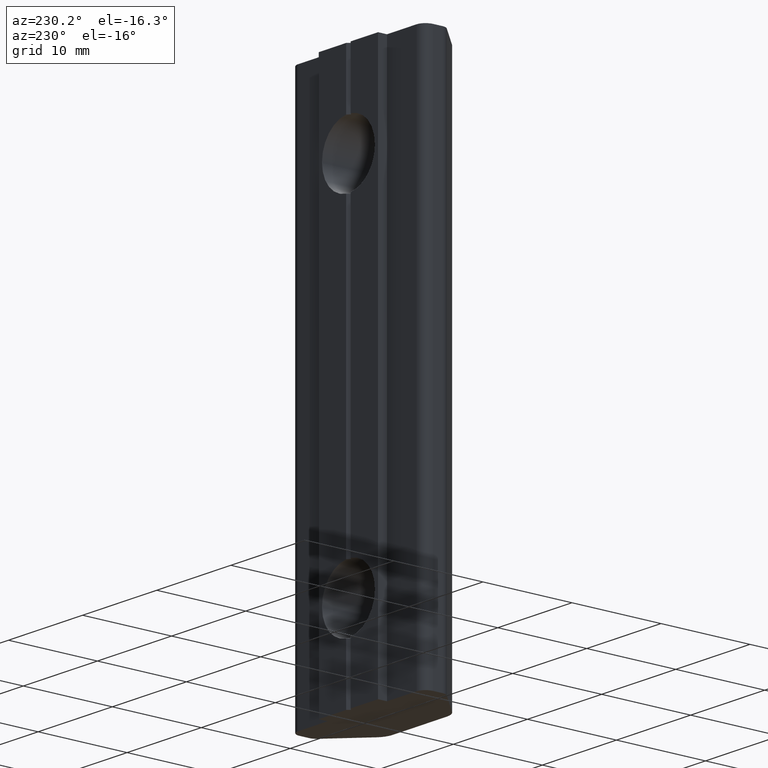
[diagram: clean part render]
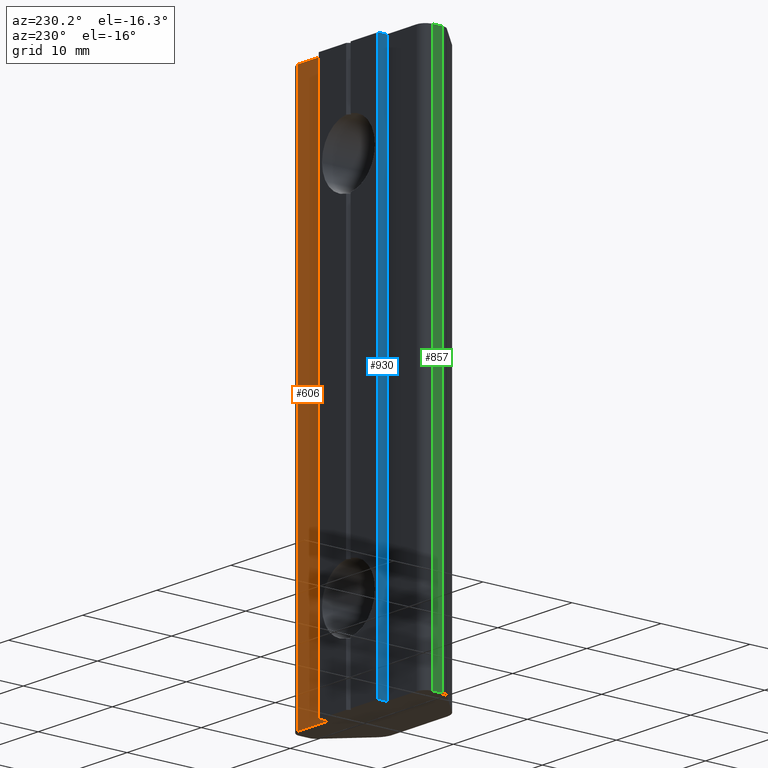
[diagram: same view with three faces highlighted in distinct colors, each labeled with its STEP entity id]
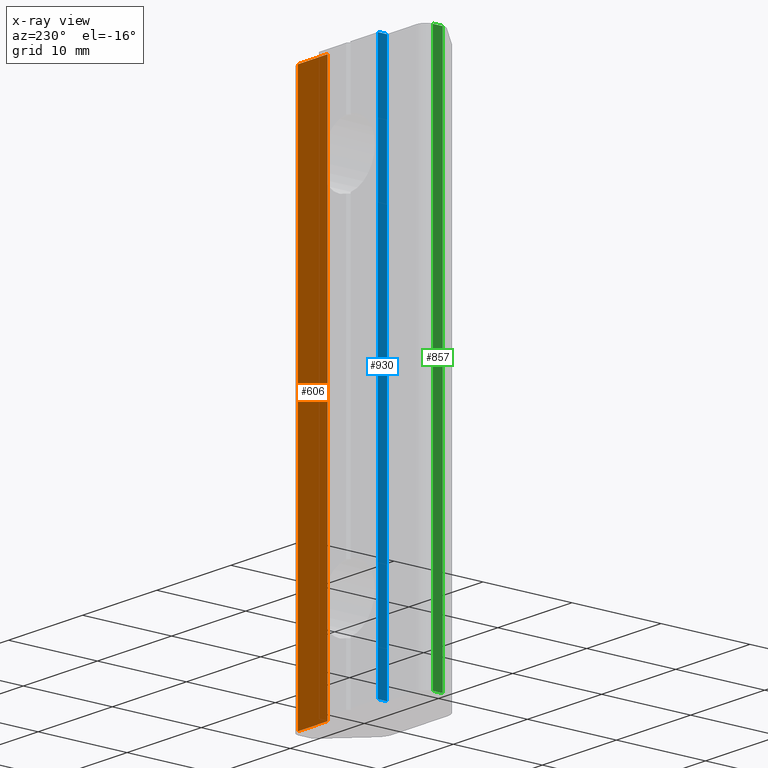
[diagram: x-ray of the same camera — body ghosted, the three highlighted faces saturated]
A machine part, auxiliary view with three faces highlighted in distinct colors.
The next image is the same camera in x-ray (body ghosted, the three faces saturated) — at least one of them is partly hidden behind the body in this view.
Their STEP definitions:

[orange] entity #606 — the highlighted planar face has unit normal (0, 1, 0).
#423=CARTESIAN_POINT('',(4.000000000000000,0.796296336915756,-30.0));
#424=VERTEX_POINT('',#423);
#431=CARTESIAN_POINT('',(8.0,0.796296336915754,-30.0));
#432=VERTEX_POINT('',#431);
#433=CARTESIAN_POINT('',(8.0,0.796296336915754,-30.0));
#434=DIRECTION('',(-1.0,0.0,0.0));
#435=VECTOR('',#434,4.0);
#436=LINE('',#433,#435);
#437=EDGE_CURVE('',#432,#424,#436,.T.);
#564=CARTESIAN_POINT('',(4.000000000000000,0.796296336915756,30.0));
#565=VERTEX_POINT('',#564);
#572=CARTESIAN_POINT('',(4.000000000000000,0.796296336915756,30.0));
#573=DIRECTION('',(0.0,0.0,-1.0));
#574=VECTOR('',#573,60.0);
#575=LINE('',#572,#574);
#576=EDGE_CURVE('',#565,#424,#575,.T.);
#583=CARTESIAN_POINT('',(4.000000000000000,0.796296336915756,0.0));
#584=DIRECTION('',(0.0,1.0,0.0));
#585=DIRECTION('',(0.0,0.0,1.0));
#586=AXIS2_PLACEMENT_3D('',#583,#584,#585);
#587=PLANE('',#586);
#588=CARTESIAN_POINT('',(8.0,0.796296336915754,30.0));
#589=VERTEX_POINT('',#588);
#590=CARTESIAN_POINT('',(4.000000000000000,0.796296336915756,30.0));
#591=DIRECTION('',(1.0,0.0,0.0));
#592=VECTOR('',#591,4.0);
#593=LINE('',#590,#592);
#594=EDGE_CURVE('',#565,#589,#593,.T.);
#595=ORIENTED_EDGE('',*,*,#594,.T.);
#596=CARTESIAN_POINT('',(8.0,0.796296336915754,30.0));
#597=DIRECTION('',(0.0,0.0,-1.0));
#598=VECTOR('',#597,60.0);
#599=LINE('',#596,#598);
#600=EDGE_CURVE('',#589,#432,#599,.T.);
#601=ORIENTED_EDGE('',*,*,#600,.T.);
#602=ORIENTED_EDGE('',*,*,#437,.T.);
#603=ORIENTED_EDGE('',*,*,#576,.F.);
#604=EDGE_LOOP('',(#595,#601,#602,#603));
#605=FACE_OUTER_BOUND('',#604,.T.);
#606=ADVANCED_FACE('',(#605),#587,.T.);

[blue] entity #930 — the highlighted planar face has unit normal (-1, 0, 0).
#404=CARTESIAN_POINT('',(-3.999999999999999,1.796296336915755,-30.0));
#405=VERTEX_POINT('',#404);
#406=CARTESIAN_POINT('',(-3.999999999999999,0.796296336915755,-30.0));
#407=VERTEX_POINT('',#406);
#408=CARTESIAN_POINT('',(-3.999999999999999,1.796296336915755,-30.0));
#409=DIRECTION('',(0.0,-1.0,0.0));
#410=VECTOR('',#409,1.0);
#411=LINE('',#408,#410);
#412=EDGE_CURVE('',#405,#407,#411,.T.);
#888=CARTESIAN_POINT('',(-3.999999999999999,0.796296336915755,30.0));
#889=VERTEX_POINT('',#888);
#896=CARTESIAN_POINT('',(-3.999999999999999,0.796296336915755,30.0));
#897=DIRECTION('',(0.0,0.0,-1.0));
#898=VECTOR('',#897,60.0);
#899=LINE('',#896,#898);
#900=EDGE_CURVE('',#889,#407,#899,.T.);
#907=CARTESIAN_POINT('',(-3.999999999999999,0.796296336915755,0.0));
#908=DIRECTION('',(-1.0,0.0,0.0));
#909=DIRECTION('',(0.0,0.0,1.0));
#910=AXIS2_PLACEMENT_3D('',#907,#908,#909);
#911=PLANE('',#910);
#912=CARTESIAN_POINT('',(-3.999999999999999,1.796296336915755,30.0));
#913=VERTEX_POINT('',#912);
#914=CARTESIAN_POINT('',(-3.999999999999999,0.796296336915755,30.0));
#915=DIRECTION('',(0.0,1.0,0.0));
#916=VECTOR('',#915,1.0);
#917=LINE('',#914,#916);
#918=EDGE_CURVE('',#889,#913,#917,.T.);
#919=ORIENTED_EDGE('',*,*,#918,.T.);
#920=CARTESIAN_POINT('',(-3.999999999999999,1.796296336915755,-30.0));
#921=DIRECTION('',(0.0,0.0,1.0));
#922=VECTOR('',#921,60.0);
#923=LINE('',#920,#922);
#924=EDGE_CURVE('',#405,#913,#923,.T.);
#925=ORIENTED_EDGE('',*,*,#924,.F.);
#926=ORIENTED_EDGE('',*,*,#412,.T.);
#927=ORIENTED_EDGE('',*,*,#900,.F.);
#928=EDGE_LOOP('',(#919,#925,#926,#927));
#929=FACE_OUTER_BOUND('',#928,.T.);
#930=ADVANCED_FACE('',(#929),#911,.T.);

[green] entity #857 — the highlighted planar face has unit normal (-1, 0, 0).
#507=CARTESIAN_POINT('',(-9.0,-1.289490100711149,-30.0));
#508=VERTEX_POINT('',#507);
#516=CARTESIAN_POINT('',(-9.0,-0.203703663084248,-30.0));
#517=VERTEX_POINT('',#516);
#518=CARTESIAN_POINT('',(-9.0,-0.203703663084248,-30.0));
#519=DIRECTION('',(0.0,-1.0,0.0));
#520=VECTOR('',#519,1.085786437626900);
#521=LINE('',#518,#520);
#522=EDGE_CURVE('',#517,#508,#521,.T.);
#814=CARTESIAN_POINT('',(-9.0,-1.289490100711149,30.0));
#815=VERTEX_POINT('',#814);
#823=CARTESIAN_POINT('',(-9.0,-1.289490100711149,30.0));
#824=DIRECTION('',(0.0,0.0,-1.0));
#825=VECTOR('',#824,60.0);
#826=LINE('',#823,#825);
#827=EDGE_CURVE('',#815,#508,#826,.T.);
#834=CARTESIAN_POINT('',(-9.0,-1.289490100711149,0.0));
#835=DIRECTION('',(-1.0,0.0,0.0));
#836=DIRECTION('',(0.0,0.0,1.0));
#837=AXIS2_PLACEMENT_3D('',#834,#835,#836);
#838=PLANE('',#837);
#839=CARTESIAN_POINT('',(-9.0,-0.203703663084248,30.0));
#840=VERTEX_POINT('',#839);
#841=CARTESIAN_POINT('',(-9.0,-1.289490100711149,30.0));
#842=DIRECTION('',(0.0,1.0,0.0));
#843=VECTOR('',#842,1.085786437626900);
#844=LINE('',#841,#843);
#845=EDGE_CURVE('',#815,#840,#844,.T.);
#846=ORIENTED_EDGE('',*,*,#845,.T.);
#847=CARTESIAN_POINT('',(-9.0,-0.203703663084248,30.0));
#848=DIRECTION('',(0.0,0.0,-1.0));
#849=VECTOR('',#848,60.0);
#850=LINE('',#847,#849);
#851=EDGE_CURVE('',#840,#517,#850,.T.);
#852=ORIENTED_EDGE('',*,*,#851,.T.);
#853=ORIENTED_EDGE('',*,*,#522,.T.);
#854=ORIENTED_EDGE('',*,*,#827,.F.);
#855=EDGE_LOOP('',(#846,#852,#853,#854));
#856=FACE_OUTER_BOUND('',#855,.T.);
#857=ADVANCED_FACE('',(#856),#838,.T.);